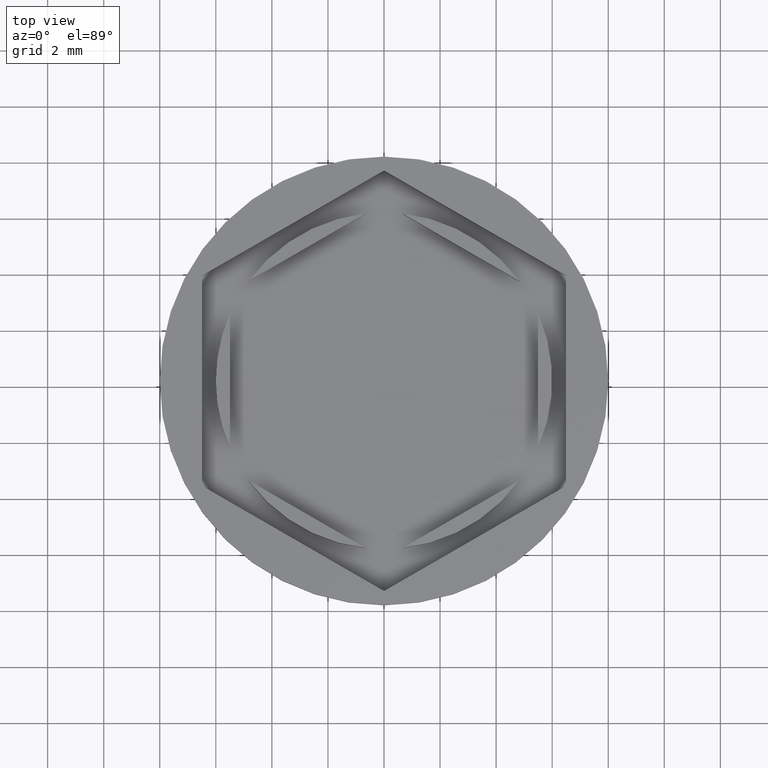
[diagram: clean part render]
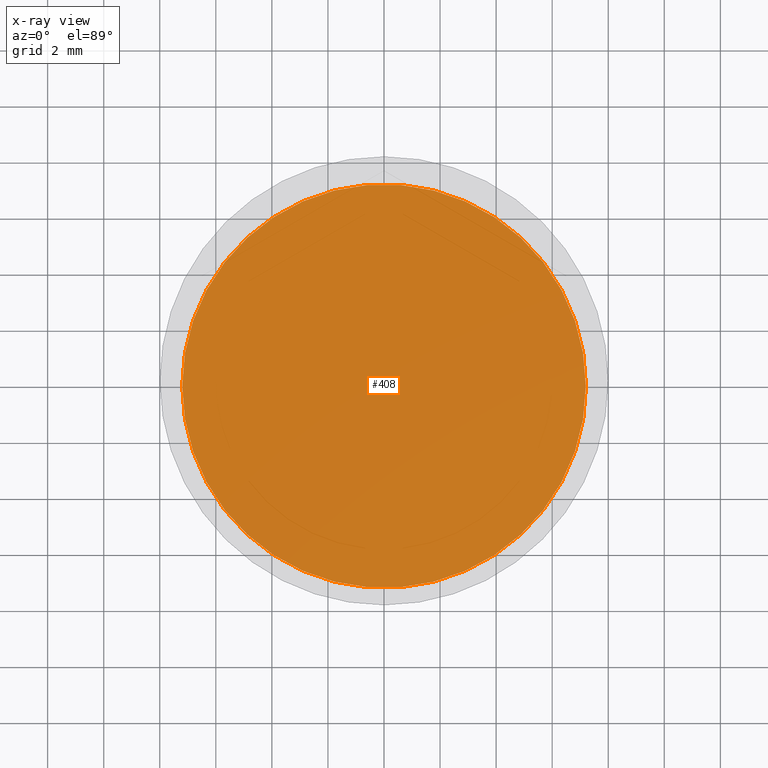
[diagram: x-ray — body ghosted, one internal face saturated and labeled with its STEP entity id]
A machine part, top view, then the same camera in x-ray: the body is ghosted and one INTERNAL B-rep face — a face not visible from any outside direction — is saturated and labeled: STEP entity #408.
In plain terms, the highlighted planar face has unit normal (0, 0, -1).
Its self-contained STEP definition (entity closure, byte-faithful):
#96 = AXIS2_PLACEMENT_3D ( 'NONE', #1225, #1109, #453 ) ;
#141 = FACE_OUTER_BOUND ( 'NONE', #257, .T. ) ;
#206 = DIRECTION ( 'NONE',  ( -0.000000000000000000, -0.000000000000000000, 1.000000000000000000 ) ) ;
#257 = EDGE_LOOP ( 'NONE', ( #411, #1058 ) ) ;
#273 = AXIS2_PLACEMENT_3D ( 'NONE', #765, #1249, #938 ) ;
#291 = VERTEX_POINT ( 'NONE', #734 ) ;
#387 = CARTESIAN_POINT ( 'NONE',  ( 7.200000000000001954, 9.001153973733047589E-16, -11.00000000000000000 ) ) ;
#408 = ADVANCED_FACE ( 'NONE', ( #141 ), #1087, .F. ) ;
#411 = ORIENTED_EDGE ( 'NONE', *, *, #1019, .T. ) ;
#453 = DIRECTION ( 'NONE',  ( -1.000000000000000000, 0.000000000000000000, 0.000000000000000000 ) ) ;
#487 = VERTEX_POINT ( 'NONE', #387 ) ;
#734 = CARTESIAN_POINT ( 'NONE',  ( -7.200000000000001954, 0.000000000000000000, -11.00000000000000000 ) ) ;
#765 = CARTESIAN_POINT ( 'NONE',  ( 0.000000000000000000, 0.000000000000000000, -11.00000000000000000 ) ) ;
#881 = EDGE_CURVE ( 'NONE', #487, #291, #1960, .T. ) ;
#938 = DIRECTION ( 'NONE',  ( -1.000000000000000000, 0.000000000000000000, -0.000000000000000000 ) ) ;
#1019 = EDGE_CURVE ( 'NONE', #291, #487, #1904, .T. ) ;
#1058 = ORIENTED_EDGE ( 'NONE', *, *, #881, .T. ) ;
#1087 = PLANE ( 'NONE',  #273 ) ;
#1109 = DIRECTION ( 'NONE',  ( -0.000000000000000000, -0.000000000000000000, 1.000000000000000000 ) ) ;
#1225 = CARTESIAN_POINT ( 'NONE',  ( 0.000000000000000000, 0.000000000000000000, -11.00000000000000000 ) ) ;
#1249 = DIRECTION ( 'NONE',  ( 0.000000000000000000, 0.000000000000000000, -1.000000000000000000 ) ) ;
#1406 = AXIS2_PLACEMENT_3D ( 'NONE', #1589, #206, #1435 ) ;
#1435 = DIRECTION ( 'NONE',  ( -1.000000000000000000, 0.000000000000000000, 0.000000000000000000 ) ) ;
#1589 = CARTESIAN_POINT ( 'NONE',  ( 0.000000000000000000, 0.000000000000000000, -11.00000000000000000 ) ) ;
#1904 = CIRCLE ( 'NONE', #96, 7.200000000000001954 ) ;
#1960 = CIRCLE ( 'NONE', #1406, 7.200000000000001954 ) ;